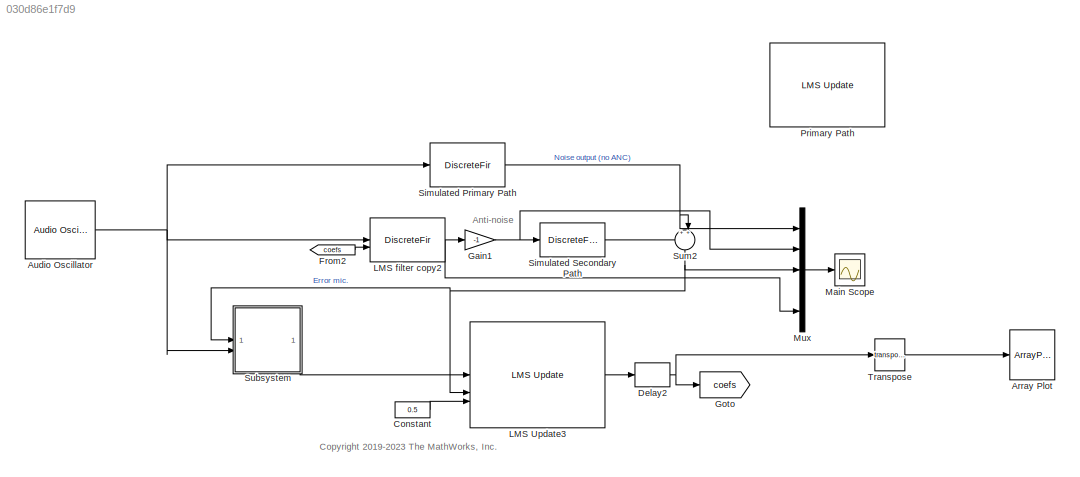
MODEL slx_030d86e1f7d9
KIND model
CONFIG AbsTol = auto
CONFIG EnableMultiTasking = off
CONFIG FixedStep = auto
CONFIG MaxStep = auto
CONFIG MinStep = auto
CONFIG RelTol = 1e-3
CONFIG SampleTimeConstraint = Unconstrained
CONFIG SolverName = VariableStepAuto
CONFIG StartTime = 0.0
CONFIG StopTime = 20
BLOCK [ArrayPlot] Array Plot
  GraphicalSettings = {"Style":{"BackgroundColor":[0.12941176470588237,0.12941176470588237,0.12941176470588237],"AxesColor":[0.07058823529411765,0.07058823529411765,0.07058823529411765],"LabelsColor":[0.8509803921568627,0.8509803921568627,0.8509803921568627],"PreserveColors":false,"Visible":[true],"LineStyle":["-"],"LineColor":[[1,1,0.06666666666666667]],"LineWidth":[1.5],"Marker":["o"],"FontSize":"small"},"Cursors":{"...<+534ch>
  ScopeFrameLocation = window
  WasSavedAsWebScope = on
  WindowPosition = [687.000000,155.000000,800.000000,500.000000,]
  YLimits = [-0.0987 0.792]
BLOCK [Reference] Audio Oscillator  REF=audiosources/Audio Oscillator
  SourceBlock = audiosources/Audio Oscillator
  SourceType = audio.simulink.AudioOscillator
BLOCK [Constant] Constant
  Value = 0.5
BLOCK [Delay] Delay2
  DelayLength = 1
  InputPortMap = u0
BLOCK [From] From2
  GotoTag = coefs
BLOCK [Gain] Gain1
  Gain = -1
BLOCK [Goto] Goto
  GotoTag = coefs
BLOCK [Reference] LMS Update3  REF=dspadpt3/LMS Update
  SourceBlock = dspadpt3/LMS Update
  SourceType = dsp.simulink.LMSUpdate
BLOCK [DiscreteFir] LMS filter copy2
  CoefSource = Input port
  InputPortMap = u0,u1
  OutputPortMap = o0
BLOCK [Scope] Main Scope
  Floating = off
  NumInputPorts = 1
  ScopeSpecificationString = Simulink.scopes.TimeScopeBlockCfg('CurrentConfiguration', extmgr.ConfigurationSet(extmgr.Configuration('Core','General UI',true),extmgr.Configuration('Core','Source UI',true),extmgr.Configuration('Sources','WiredSimulink',true,'DataLoggingVariableName','ScopeData1'),extmgr.Configuration('Visuals','Time Domain',true,'SerializedDisplays',{struct('MinYLimReal','-37489.29609','MaxYLimReal','37489.2960...<+1705ch>
BLOCK [Mux] Mux
  DisplayOption = bar
  Inputs = 5
BLOCK [Reference] Primary Path  REF=dspadpt3/LMS Update
  Commented = on
  SourceBlock = dspadpt3/LMS Update
  SourceType = dsp.simulink.LMSUpdate
BLOCK [DiscreteFir] Simulated Primary Path
  InputPortMap = u0
  OutputPortMap = o0
BLOCK [DiscreteFir] Simulated Secondary Path
  InputPortMap = u0
  OutputPortMap = o0
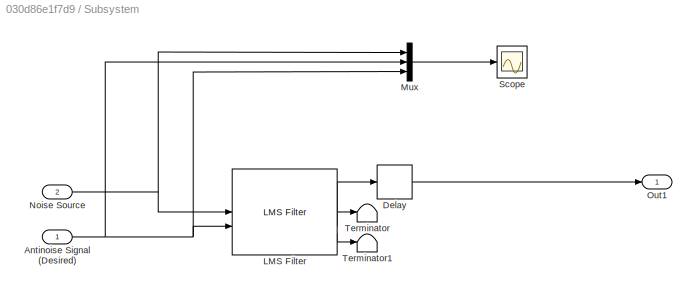
BLOCK [SubSystem] Subsystem
BLOCK [Inport] Subsystem/Antinoise Signal (Desired)
BLOCK [Delay] Subsystem/Delay
  DelayLength = 1
  InitialCondition = 0
  InputPortMap = u0
BLOCK [Reference] Subsystem/LMS Filter  REF=dspadpt3/LMS Filter
  SourceBlock = dspadpt3/LMS Filter
  SourceType = LMS Filter
BLOCK [Mux] Subsystem/Mux
  DisplayOption = bar
  Inputs = 3
BLOCK [Inport] Subsystem/Noise Source
  NameLocation = top
  Port = 2
BLOCK [Outport] Subsystem/Out1
BLOCK [Scope] Subsystem/Scope
  Floating = off
  NumInputPorts = 1
  ScopeSpecificationString = Simulink.scopes.TimeScopeBlockCfg('CurrentConfiguration', extmgr.ConfigurationSet(extmgr.Configuration('Core','General UI',true),extmgr.Configuration('Core','Source UI',true),extmgr.Configuration('Sources','WiredSimulink',true,'DataLoggingVariableName','ScopeData1'),extmgr.Configuration('Visuals','Time Domain',true,'SerializedDisplays',{struct('MinYLimReal','-65931957570982599702243446110286968271...<+4042ch>
BLOCK [Terminator] Subsystem/Terminator
BLOCK [Terminator] Subsystem/Terminator1
BLOCK [Sum] Sum2
  Inputs = ++|
  NameLocation = left
BLOCK [Math] Transpose
  Operator = transpose
ANNOTATION (root): Anti-noise
ANNOTATION (root): <copyright redacted>
NET Audio Oscillator:1 -> LMS filter copy2:1, Simulated Primary Path:1, Subsystem:2
LINE Constant:1 -> LMS Update3:3
NET Delay2:1 -> Goto:1, Transpose:1
LINE From2:1 -> LMS filter copy2:2
NET Gain1:1 -> Mux:2, Simulated Secondary Path:1
LINE LMS Update3:1 -> Delay2:1
NET LMS filter copy2:1 -> Gain1:1, Mux:5
LINE Mux:1 -> Main Scope:1
NET Simulated Primary Path:1 -> Mux:1, Sum2:2
LINE Simulated Secondary Path:1 -> Sum2:1
NET Subsystem/Antinoise Signal (Desired):1 -> Subsystem/LMS Filter:2, Subsystem/Mux:2, Subsystem/Mux:3
LINE Subsystem/Delay:1 -> Subsystem/Out1:1
LINE Subsystem/LMS Filter:1 -> Subsystem/Delay:1
LINE Subsystem/LMS Filter:2 -> Subsystem/Terminator:1
LINE Subsystem/LMS Filter:3 -> Subsystem/Terminator1:1
LINE Subsystem/Mux:1 -> Subsystem/Scope:1
NET Subsystem/Noise Source:1 -> Subsystem/LMS Filter:1, Subsystem/Mux:1
LINE Subsystem:1 -> LMS Update3:1
NET Sum2:1 -> LMS Update3:2, Mux:3, Subsystem:1
LINE Transpose:1 -> Array Plot:1
note: NET lines group one-source signal fan-out (src -> all destinations, sorted); 1:1 wires keep LINE
